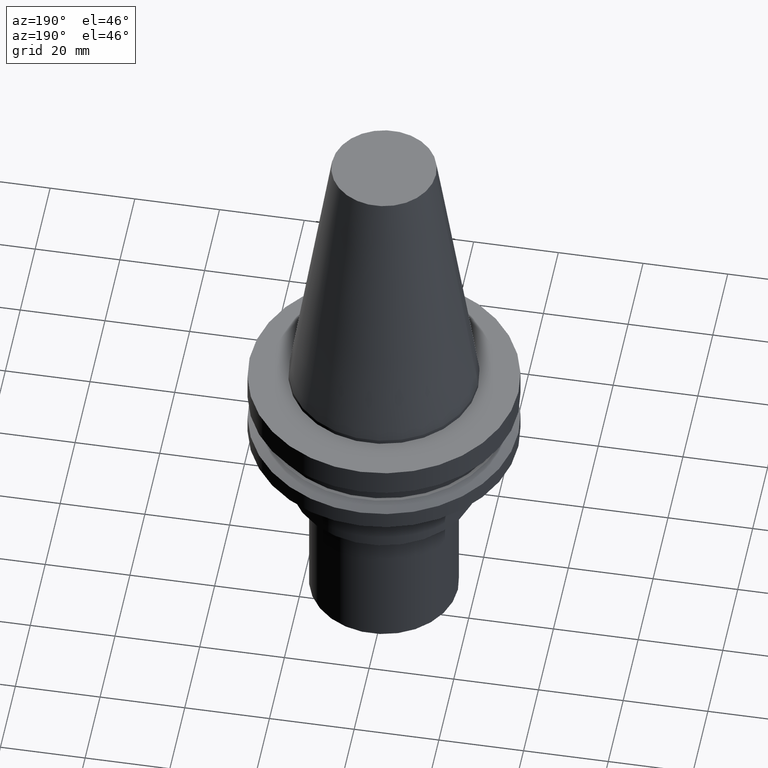
[diagram: clean part render]
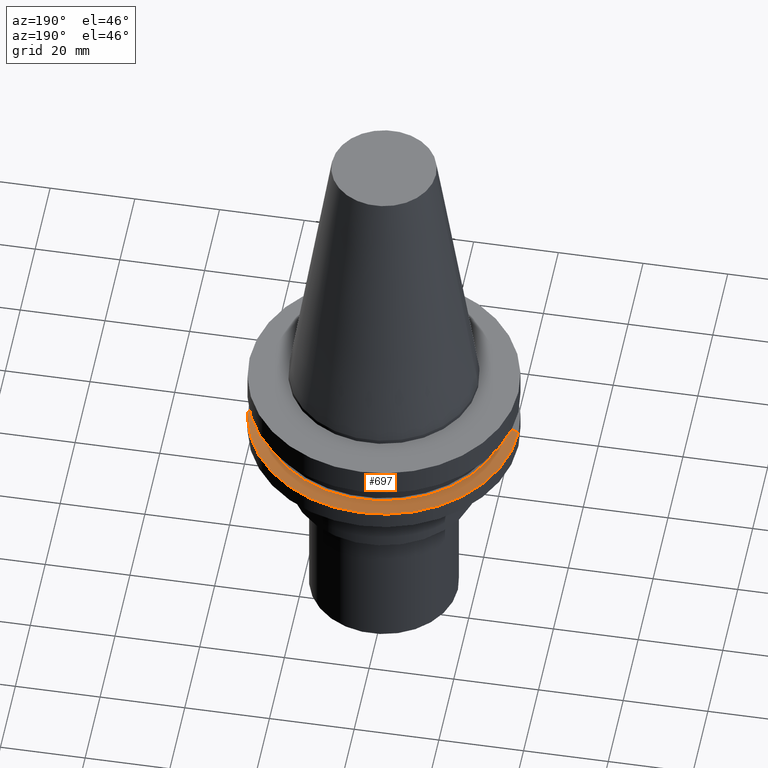
[diagram: same view with one face highlighted and labeled with its STEP entity id]
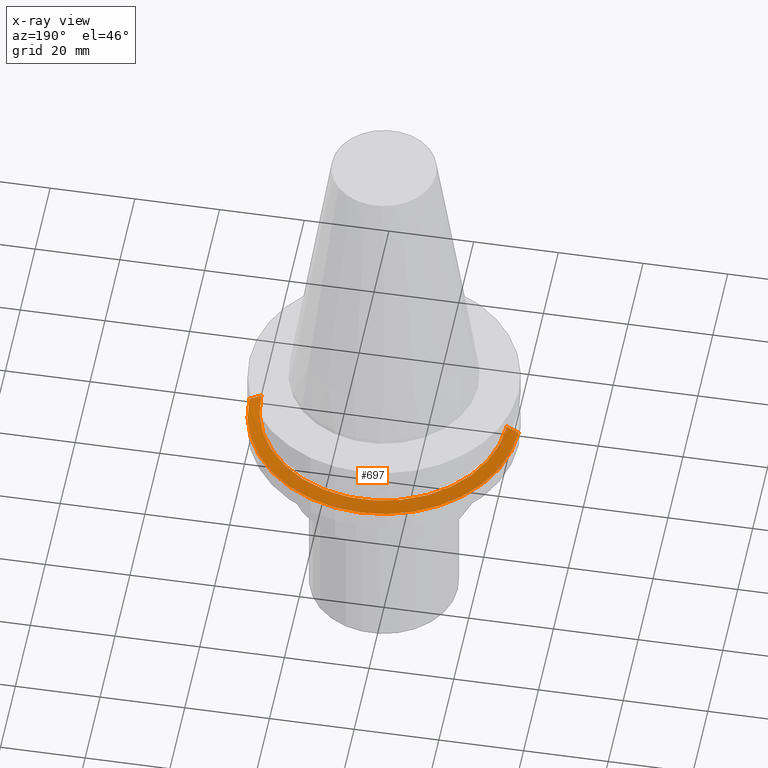
[diagram: x-ray of the same camera — body ghosted, the highlighted face saturated]
A machine part, auxiliary view. The second image highlights one B-rep face of the part: STEP entity #697.
The next image is the same camera in x-ray: the body ghosted, the highlighted face saturated — about 0% of this face is hidden behind the body in this view.
In plain terms, the highlighted conical surface has half-angle 60 deg.
Its self-contained STEP definition (entity closure, byte-faithful):
#16 = VERTEX_POINT ( 'NONE', #205 ) ;
#72 = ORIENTED_EDGE ( 'NONE', *, *, #749, .F. ) ;
#89 = LINE ( 'NONE', #623, #422 ) ;
#116 = ORIENTED_EDGE ( 'NONE', *, *, #344, .T. ) ;
#155 = DIRECTION ( 'NONE',  ( -1.000000000000000000, 0.000000000000000000, 0.000000000000000000 ) ) ;
#178 = LINE ( 'NONE', #708, #428 ) ;
#179 = CIRCLE ( 'NONE', #334, 28.97919780457008088 ) ;
#182 = VERTEX_POINT ( 'NONE', #684 ) ;
#186 = AXIS2_PLACEMENT_3D ( 'NONE', #317, #709, #569 ) ;
#205 = CARTESIAN_POINT ( 'NONE',  ( -28.97919780457008088, 0.000000000000000000, -13.05499999999999794 ) ) ;
#245 = DIRECTION ( 'NONE',  ( -0.000000000000000000, -0.000000000000000000, 1.000000000000000000 ) ) ;
#284 = VERTEX_POINT ( 'NONE', #510 ) ;
#285 = FACE_OUTER_BOUND ( 'NONE', #358, .T. ) ;
#288 = DIRECTION ( 'NONE',  ( -0.8660254037844387076, 0.000000000000000000, -0.4999999999999998890 ) ) ;
#297 = VERTEX_POINT ( 'NONE', #314 ) ;
#307 = CIRCLE ( 'NONE', #186, 31.75000000000000000 ) ;
#314 = CARTESIAN_POINT ( 'NONE',  ( 31.75000000000000000, 0.000000000000000000, -14.65472339340266572 ) ) ;
#317 = CARTESIAN_POINT ( 'NONE',  ( 0.000000000000000000, 0.000000000000000000, -14.65472339340266572 ) ) ;
#334 = AXIS2_PLACEMENT_3D ( 'NONE', #509, #245, #703 ) ;
#344 = EDGE_CURVE ( 'NONE', #297, #284, #307, .T. ) ;
#358 = EDGE_LOOP ( 'NONE', ( #72, #638, #116, #744 ) ) ;
#362 = CONICAL_SURFACE ( 'NONE', #558, 31.75000000000000000, 1.047197551196597853 ) ;
#378 = EDGE_CURVE ( 'NONE', #182, #297, #178, .T. ) ;
#422 = VECTOR ( 'NONE', #288, 1000.000000000000000 ) ;
#428 = VECTOR ( 'NONE', #439, 1000.000000000000000 ) ;
#439 = DIRECTION ( 'NONE',  ( 0.8660254037844387076, 1.060575238724906915E-16, -0.4999999999999998890 ) ) ;
#509 = CARTESIAN_POINT ( 'NONE',  ( 0.000000000000000000, 0.000000000000000000, -13.05499999999999794 ) ) ;
#510 = CARTESIAN_POINT ( 'NONE',  ( -31.75000000000000000, 3.888253587292846476E-15, -14.65472339340266572 ) ) ;
#554 = CARTESIAN_POINT ( 'NONE',  ( 0.000000000000000000, 0.000000000000000000, -14.65472339340266572 ) ) ;
#558 = AXIS2_PLACEMENT_3D ( 'NONE', #554, #748, #155 ) ;
#569 = DIRECTION ( 'NONE',  ( 1.000000000000000000, 0.000000000000000000, 0.000000000000000000 ) ) ;
#623 = CARTESIAN_POINT ( 'NONE',  ( -31.75000000000000000, 0.000000000000000000, -14.65472339340266572 ) ) ;
#638 = ORIENTED_EDGE ( 'NONE', *, *, #378, .T. ) ;
#656 = EDGE_CURVE ( 'NONE', #16, #284, #89, .T. ) ;
#684 = CARTESIAN_POINT ( 'NONE',  ( 28.97919780457008088, 3.718590885307660666E-15, -13.05499999999999794 ) ) ;
#697 = ADVANCED_FACE ( 'NONE', ( #285 ), #362, .T. ) ;
#703 = DIRECTION ( 'NONE',  ( 1.000000000000000000, 0.000000000000000000, 0.000000000000000000 ) ) ;
#708 = CARTESIAN_POINT ( 'NONE',  ( 31.75000000000000000, 3.888253587292846476E-15, -14.65472339340266572 ) ) ;
#709 = DIRECTION ( 'NONE',  ( -0.000000000000000000, -0.000000000000000000, 1.000000000000000000 ) ) ;
#744 = ORIENTED_EDGE ( 'NONE', *, *, #656, .F. ) ;
#748 = DIRECTION ( 'NONE',  ( 0.000000000000000000, 0.000000000000000000, -1.000000000000000000 ) ) ;
#749 = EDGE_CURVE ( 'NONE', #182, #16, #179, .T. ) ;